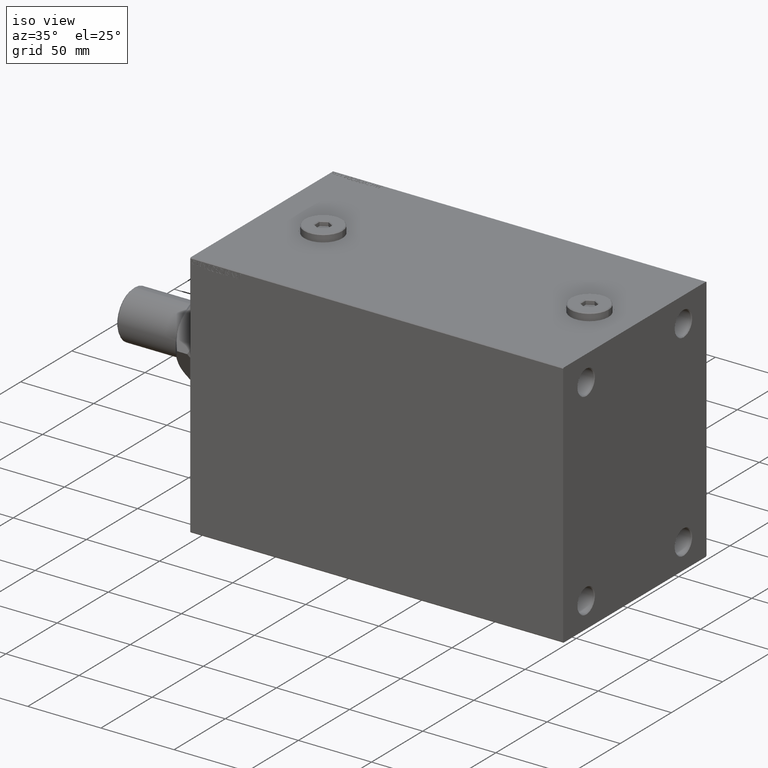
[diagram: clean part render]
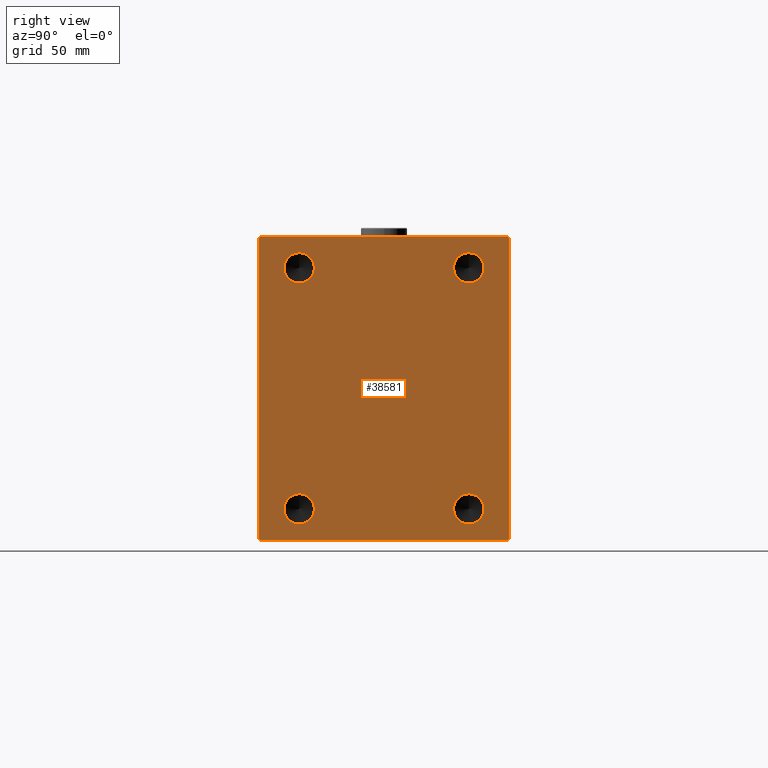
[diagram: tour spotlight — one face highlighted and labeled with its STEP entity id]
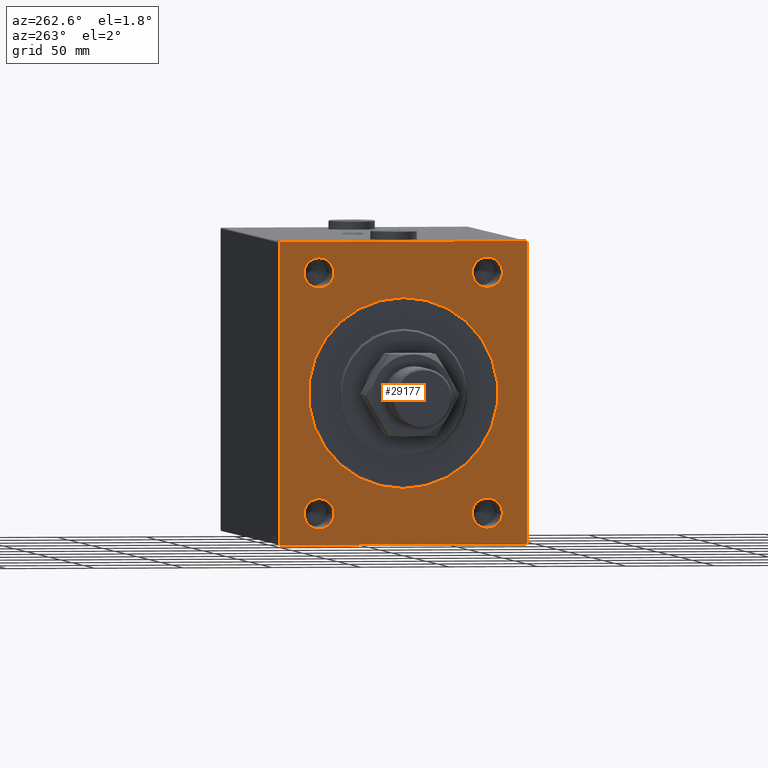
[diagram: tour spotlight — one face highlighted and labeled with its STEP entity id]
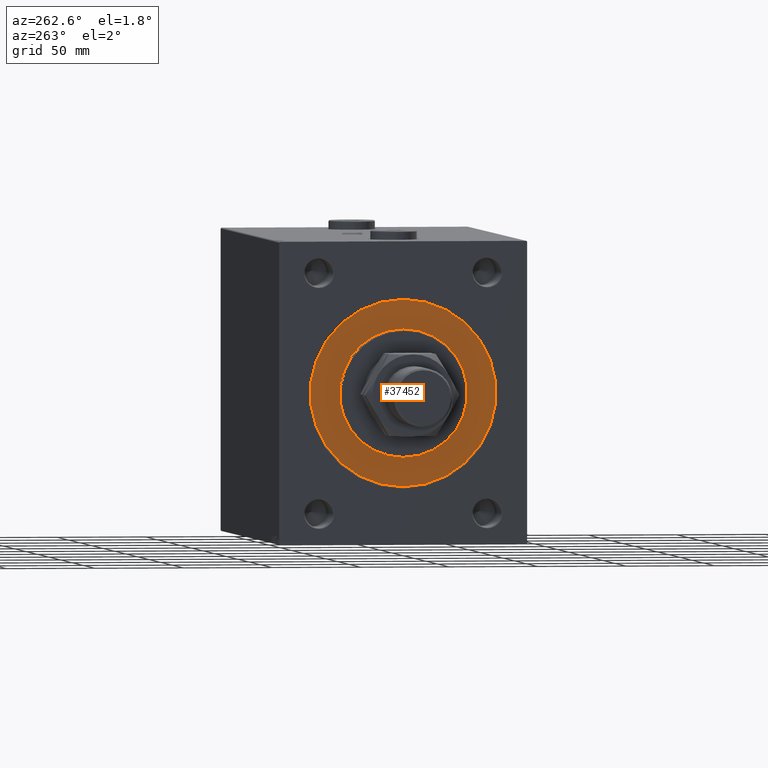
[diagram: tour spotlight — one face highlighted and labeled with its STEP entity id]
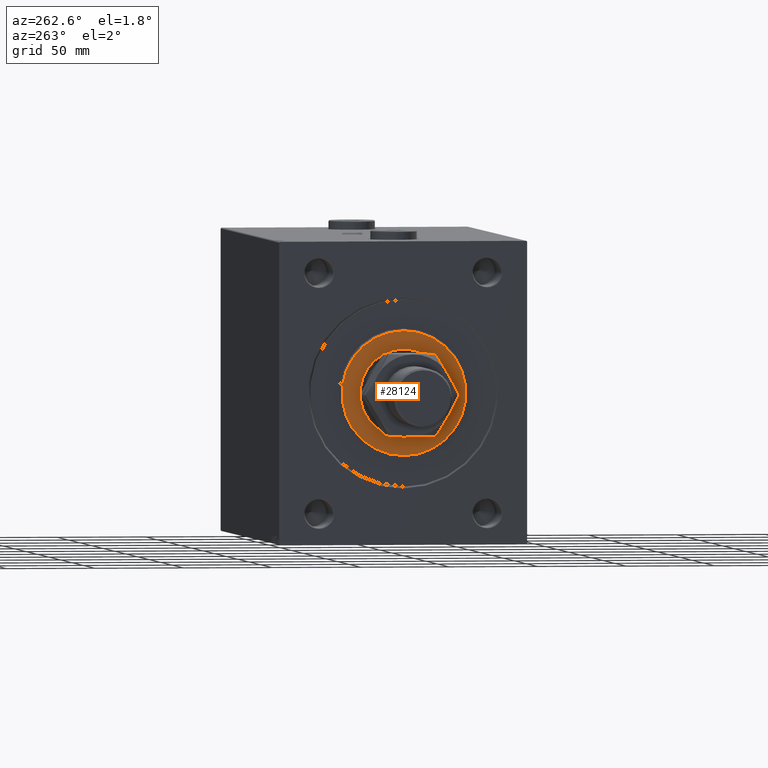
[diagram: tour spotlight — one face highlighted and labeled with its STEP entity id]
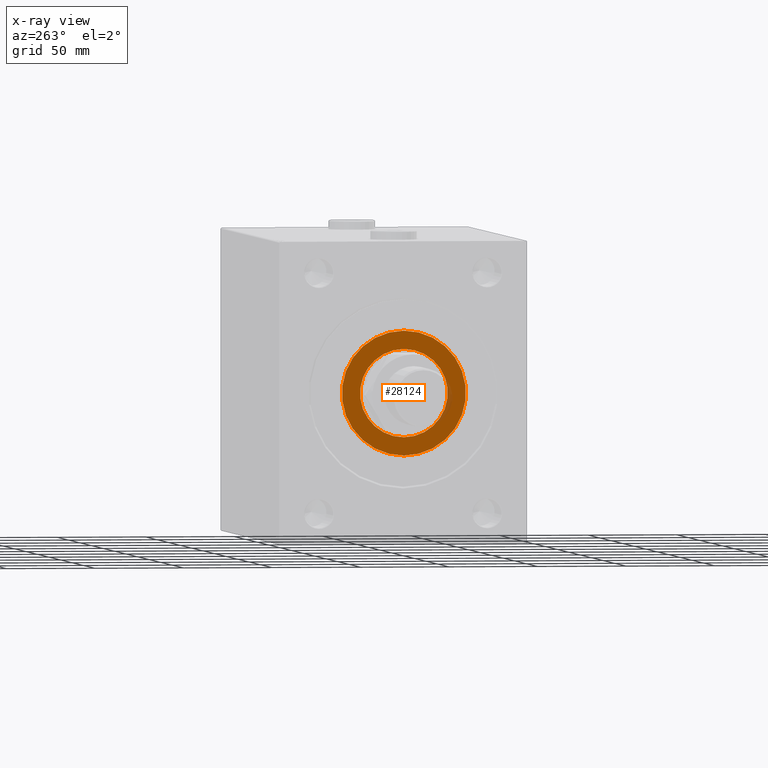
[diagram: x-ray of the same camera — body ghosted, this tour face saturated]
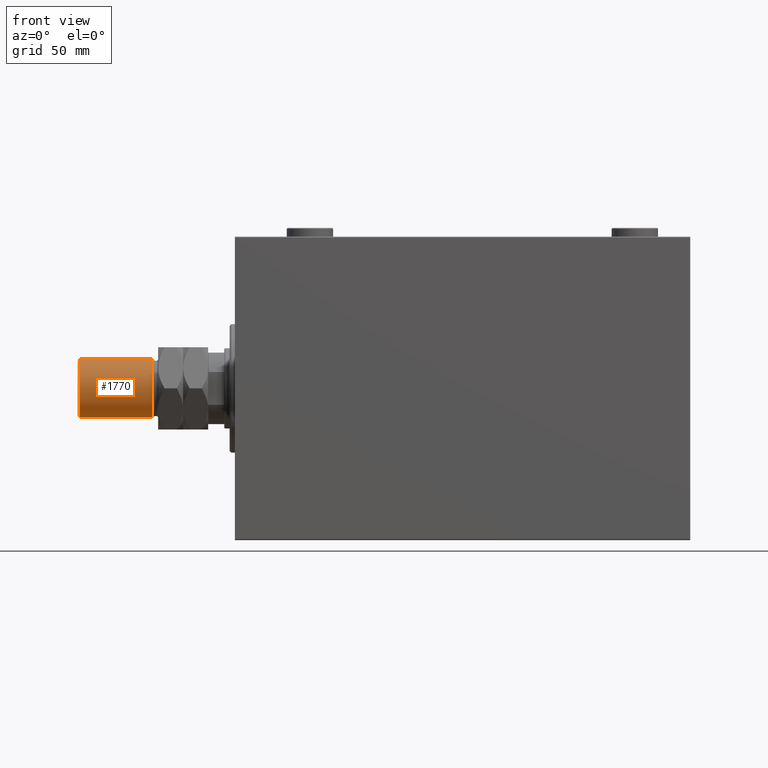
[diagram: tour spotlight — one face highlighted and labeled with its STEP entity id]
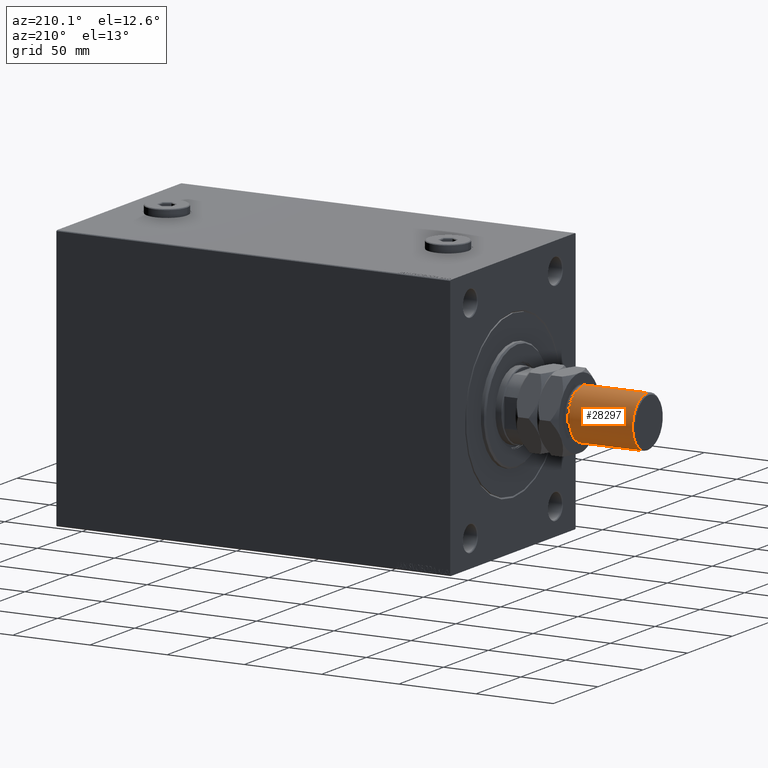
[diagram: tour spotlight — one face highlighted and labeled with its STEP entity id]
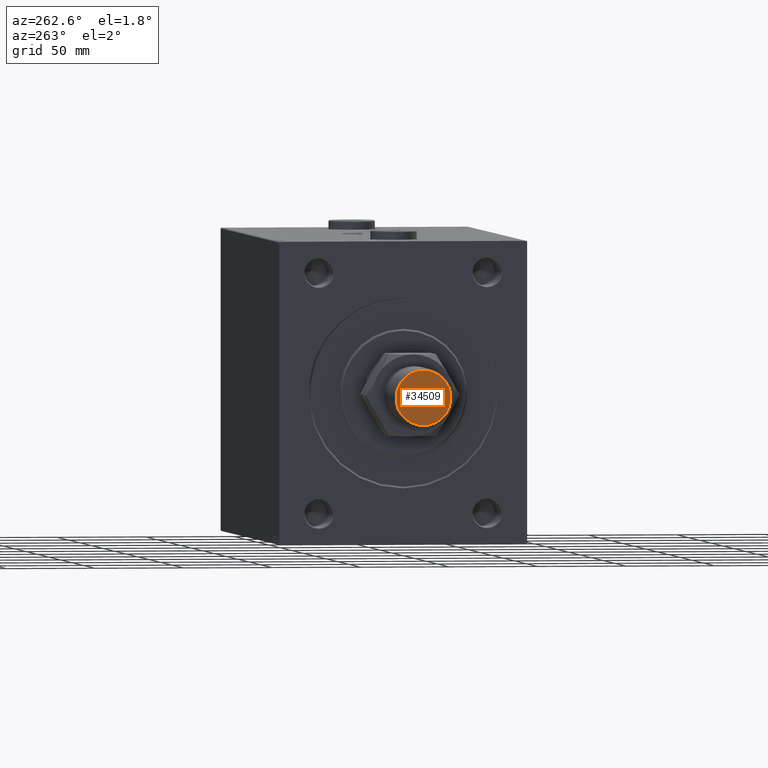
[diagram: tour spotlight — one face highlighted and labeled with its STEP entity id]
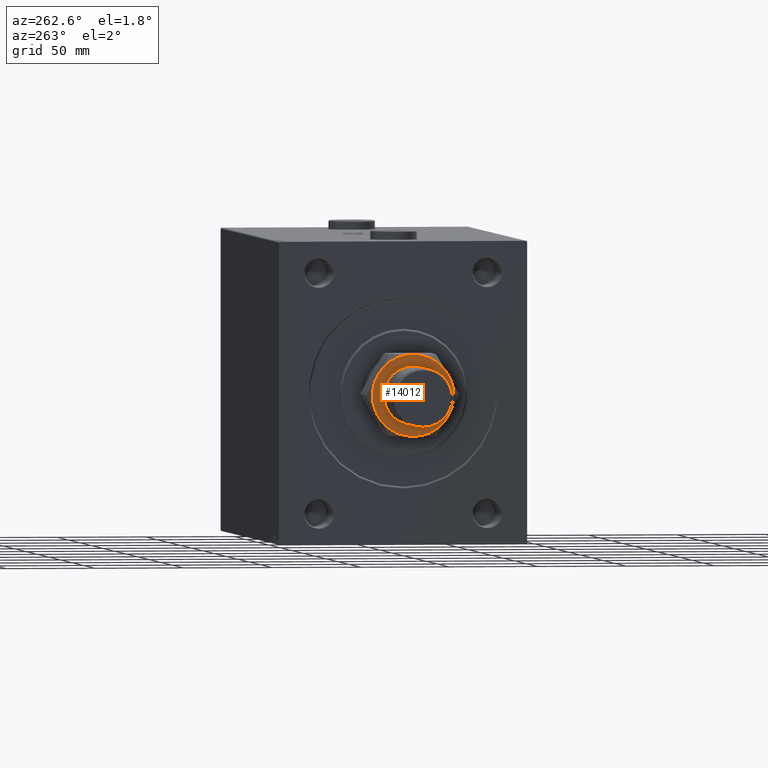
[diagram: tour spotlight — one face highlighted and labeled with its STEP entity id]
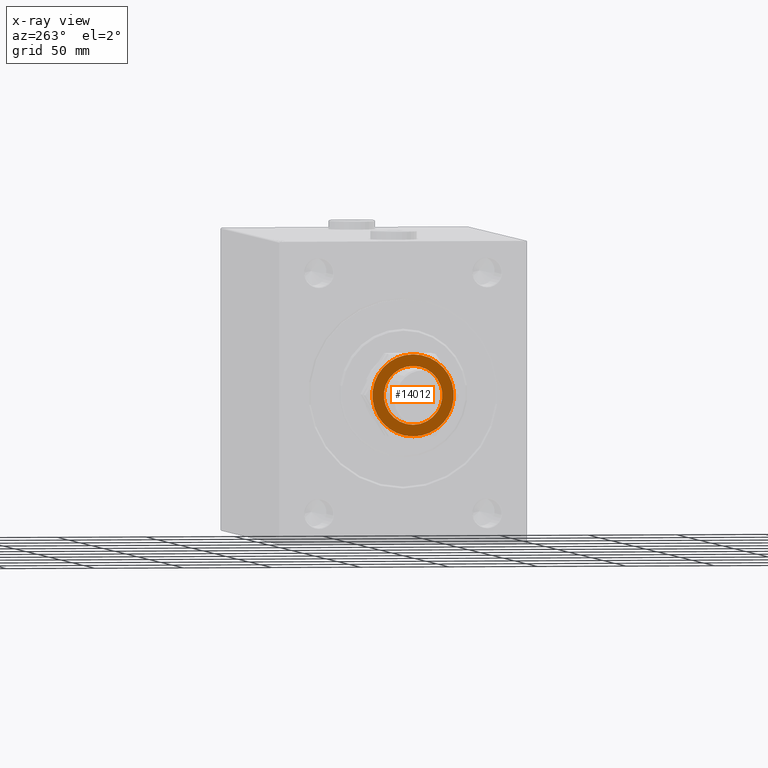
[diagram: x-ray of the same camera — body ghosted, this tour face saturated]
A machine part: a face-by-face anatomy tour. The part has 987 B-rep faces; the first image is the clean iso view, then the 8 largest visible faces are spotlighted one at a time (largest first), each with its STEP entity span.

Face 1 — right view, entity #38581. In plain terms, the highlighted planar face has unit normal (1, 0, 0).
Definition (entity closure, byte-faithful):
#213 = CARTESIAN_POINT ( 'NONE',  ( 255.0000000000000000, -70.00000000000000000, -84.49999999999994316 ) ) ;
#712 = EDGE_CURVE ( 'NONE', #5267, #20842, #40346, .T. ) ;
#1172 = DIRECTION ( 'NONE',  ( -0.000000000000000000, 0.7071067811865376918, 0.7071067811865574537 ) ) ;
#1206 = EDGE_CURVE ( 'NONE', #22684, #13029, #2306, .T. ) ;
#2238 = DIRECTION ( 'NONE',  ( 1.000000000000000000, -0.000000000000000000, -0.000000000000000000 ) ) ;
#2306 = LINE ( 'NONE', #20951, #11168 ) ;
#2494 = FACE_OUTER_BOUND ( 'NONE', #24625, .T. ) ;
#2654 = DIRECTION ( 'NONE',  ( -0.000000000000000000, 0.7071067811865376918, -0.7071067811865573427 ) ) ;
#2894 = VECTOR ( 'NONE', #2654, 1000.000000000000114 ) ;
#3038 = DIRECTION ( 'NONE',  ( 0.000000000000000000, -1.000000000000000000, -1.982541115402065110E-16 ) ) ;
#3117 = ORIENTED_EDGE ( 'NONE', *, *, #38152, .T. ) ;
#3332 = CARTESIAN_POINT ( 'NONE',  ( 255.0000000000000000, 47.50000000000000000, -59.00000000000002132 ) ) ;
#3746 = EDGE_CURVE ( 'NONE', #14069, #35767, #25752, .T. ) ;
#4464 = AXIS2_PLACEMENT_3D ( 'NONE', #20897, #12766, #38642 ) ;
#5052 = LINE ( 'NONE', #23940, #23516 ) ;
#5170 = CARTESIAN_POINT ( 'NONE',  ( 255.0000000000000000, 70.00000000000001421, -85.00000000000000000 ) ) ;
#5256 = DIRECTION ( 'NONE',  ( -0.000000000000000000, -0.7071067811865378028, 0.7071067811865573427 ) ) ;
#5267 = VERTEX_POINT ( 'NONE', #3332 ) ;
#5295 = LINE ( 'NONE', #5758, #2894 ) ;
#5375 = ORIENTED_EDGE ( 'NONE', *, *, #23305, .F. ) ;
#5758 = CARTESIAN_POINT ( 'NONE',  ( 255.0000000000000000, -77.25000000000093792, -77.24999999999880629 ) ) ;
#6071 = FACE_BOUND ( 'NONE', #35978, .T. ) ;
#6182 = VERTEX_POINT ( 'NONE', #213 ) ;
#6550 = EDGE_CURVE ( 'NONE', #13029, #18357, #7800, .T. ) ;
#6729 = ORIENTED_EDGE ( 'NONE', *, *, #3746, .F. ) ;
#6859 = CARTESIAN_POINT ( 'NONE',  ( 255.0000000000000000, -47.50000000000000000, -76.00000000000001421 ) ) ;
#7410 = CARTESIAN_POINT ( 'NONE',  ( 255.0000000000000000, -47.50000000000000000, 67.49999999999998579 ) ) ;
#7477 = CARTESIAN_POINT ( 'NONE',  ( 255.0000000000000000, 47.50000000000000000, 59.00000000000000000 ) ) ;
#7800 = LINE ( 'NONE', #5170, #19716 ) ;
#9171 = FACE_BOUND ( 'NONE', #44283, .T. ) ;
#9780 = ORIENTED_EDGE ( 'NONE', *, *, #712, .F. ) ;
#10277 = DIRECTION ( 'NONE',  ( 0.000000000000000000, 1.000000000000000000, 0.000000000000000000 ) ) ;
#10959 = CIRCLE ( 'NONE', #20123, 8.500000000000007105 ) ;
#11114 = VERTEX_POINT ( 'NONE', #35756 ) ;
#11168 = VECTOR ( 'NONE', #1172, 999.9999999999998863 ) ;
#11295 = EDGE_CURVE ( 'NONE', #23314, #14481, #31373, .T. ) ;
#11334 = DIRECTION ( 'NONE',  ( 1.000000000000000000, -0.000000000000000000, -0.000000000000000000 ) ) ;
#11501 = DIRECTION ( 'NONE',  ( 0.000000000000000000, 0.000000000000000000, -1.000000000000000000 ) ) ;
#11775 = AXIS2_PLACEMENT_3D ( 'NONE', #16261, #23681, #34697 ) ;
#12415 = ORIENTED_EDGE ( 'NONE', *, *, #25292, .F. ) ;
#12766 = DIRECTION ( 'NONE',  ( 1.000000000000000000, 0.000000000000000000, 0.000000000000000000 ) ) ;
#13029 = VERTEX_POINT ( 'NONE', #23231 ) ;
#13832 = CARTESIAN_POINT ( 'NONE',  ( 255.0000000000000000, 47.50000000000000000, 75.99999999999998579 ) ) ;
#14069 = VERTEX_POINT ( 'NONE', #13832 ) ;
#14122 = VERTEX_POINT ( 'NONE', #17418 ) ;
#14481 = VERTEX_POINT ( 'NONE', #19061 ) ;
#15244 = DIRECTION ( 'NONE',  ( 0.000000000000000000, 0.000000000000000000, -1.000000000000000000 ) ) ;
#15383 = CARTESIAN_POINT ( 'NONE',  ( 255.0000000000000000, 69.49999999999997158, 85.00000000000001421 ) ) ;
#15519 = ORIENTED_EDGE ( 'NONE', *, *, #33963, .T. ) ;
#15929 = AXIS2_PLACEMENT_3D ( 'NONE', #43669, #37168, #36227 ) ;
#16261 = CARTESIAN_POINT ( 'NONE',  ( 255.0000000000000000, 47.50000000000000000, -67.50000000000001421 ) ) ;
#16575 = AXIS2_PLACEMENT_3D ( 'NONE', #38864, #2238, #34782 ) ;
#17418 = CARTESIAN_POINT ( 'NONE',  ( 255.0000000000000000, -47.50000000000000000, -59.00000000000002132 ) ) ;
#17617 = ORIENTED_EDGE ( 'NONE', *, *, #34923, .F. ) ;
#18242 = ORIENTED_EDGE ( 'NONE', *, *, #1206, .T. ) ;
#18357 = VERTEX_POINT ( 'NONE', #20985 ) ;
#18403 = CARTESIAN_POINT ( 'NONE',  ( 255.0000000000000000, -77.24999999999803890, 77.25000000000234479 ) ) ;
#18425 = DIRECTION ( 'NONE',  ( 0.000000000000000000, 0.000000000000000000, -1.000000000000000000 ) ) ;
#19061 = CARTESIAN_POINT ( 'NONE',  ( 255.0000000000000000, -47.50000000000000000, 75.99999999999998579 ) ) ;
#19115 = LINE ( 'NONE', #18403, #44239 ) ;
#19716 = VECTOR ( 'NONE', #22410, 1000.000000000000000 ) ;
#20123 = AXIS2_PLACEMENT_3D ( 'NONE', #37762, #29601, #15244 ) ;
#20197 = ORIENTED_EDGE ( 'NONE', *, *, #28494, .T. ) ;
#20251 = VERTEX_POINT ( 'NONE', #29646 ) ;
#20344 = VECTOR ( 'NONE', #5256, 1000.000000000000000 ) ;
#20838 = CARTESIAN_POINT ( 'NONE',  ( 255.0000000000000000, -69.49999999999995737, -85.00000000000000000 ) ) ;
#20842 = VERTEX_POINT ( 'NONE', #27861 ) ;
#20897 = CARTESIAN_POINT ( 'NONE',  ( 255.0000000000000000, 0.000000000000000000, 0.000000000000000000 ) ) ;
#20951 = CARTESIAN_POINT ( 'NONE',  ( 255.0000000000000000, 77.25000000000099476, -77.24999999999884892 ) ) ;
#20985 = CARTESIAN_POINT ( 'NONE',  ( 255.0000000000000000, 70.00000000000000000, 84.49999999999997158 ) ) ;
#21118 = PLANE ( 'NONE',  #4464 ) ;
#21480 = ORIENTED_EDGE ( 'NONE', *, *, #25196, .T. ) ;
#22022 = DIRECTION ( 'NONE',  ( 1.000000000000000000, -0.000000000000000000, -0.000000000000000000 ) ) ;
#22410 = DIRECTION ( 'NONE',  ( 0.000000000000000000, -8.163404592832031500E-17, 1.000000000000000000 ) ) ;
#22684 = VERTEX_POINT ( 'NONE', #42209 ) ;
#22703 = DIRECTION ( 'NONE',  ( 0.000000000000000000, -0.7071067811865672237, -0.7071067811865279218 ) ) ;
#23231 = CARTESIAN_POINT ( 'NONE',  ( 255.0000000000000000, 70.00000000000001421, -84.50000000000002842 ) ) ;
#23305 = EDGE_CURVE ( 'NONE', #14481, #23314, #10959, .T. ) ;
#23314 = VERTEX_POINT ( 'NONE', #30078 ) ;
#23516 = VECTOR ( 'NONE', #24172, 1000.000000000000000 ) ;
#23635 = ORIENTED_EDGE ( 'NONE', *, *, #40066, .F. ) ;
#23681 = DIRECTION ( 'NONE',  ( 1.000000000000000000, -0.000000000000000000, -0.000000000000000000 ) ) ;
#23852 = ORIENTED_EDGE ( 'NONE', *, *, #11295, .F. ) ;
#23940 = CARTESIAN_POINT ( 'NONE',  ( 255.0000000000000000, -70.00000000000000000, 84.99999999999998579 ) ) ;
#24172 = DIRECTION ( 'NONE',  ( 0.000000000000000000, 0.000000000000000000, -1.000000000000000000 ) ) ;
#24246 = FACE_BOUND ( 'NONE', #42732, .T. ) ;
#24487 = FACE_BOUND ( 'NONE', #33017, .T. ) ;
#24625 = EDGE_LOOP ( 'NONE', ( #21480, #3117, #35988, #15519, #25761, #18242, #28247, #20197 ) ) ;
#24879 = CIRCLE ( 'NONE', #40174, 8.500000000000007105 ) ;
#25196 = EDGE_CURVE ( 'NONE', #31950, #11114, #45279, .T. ) ;
#25292 = EDGE_CURVE ( 'NONE', #20842, #5267, #37812, .T. ) ;
#25752 = CIRCLE ( 'NONE', #16575, 8.500000000000007105 ) ;
#25761 = ORIENTED_EDGE ( 'NONE', *, *, #44167, .T. ) ;
#26174 = CARTESIAN_POINT ( 'NONE',  ( 255.0000000000000000, 47.50000000000000000, -67.50000000000001421 ) ) ;
#26784 = AXIS2_PLACEMENT_3D ( 'NONE', #7410, #22022, #18425 ) ;
#27244 = AXIS2_PLACEMENT_3D ( 'NONE', #26174, #11334, #40561 ) ;
#27261 = EDGE_CURVE ( 'NONE', #35767, #14069, #24879, .T. ) ;
#27270 = CARTESIAN_POINT ( 'NONE',  ( 255.0000000000000000, 70.00000000000000000, 85.00000000000001421 ) ) ;
#27861 = CARTESIAN_POINT ( 'NONE',  ( 255.0000000000000000, 47.50000000000000000, -76.00000000000001421 ) ) ;
#28196 = CIRCLE ( 'NONE', #38952, 8.500000000000007105 ) ;
#28247 = ORIENTED_EDGE ( 'NONE', *, *, #6550, .T. ) ;
#28494 = EDGE_CURVE ( 'NONE', #18357, #31950, #45501, .T. ) ;
#28935 = LINE ( 'NONE', #39280, #40584 ) ;
#29601 = DIRECTION ( 'NONE',  ( 1.000000000000000000, -0.000000000000000000, -0.000000000000000000 ) ) ;
#29646 = CARTESIAN_POINT ( 'NONE',  ( 255.0000000000000000, -70.00000000000000000, 84.49999999999998579 ) ) ;
#30078 = CARTESIAN_POINT ( 'NONE',  ( 255.0000000000000000, -47.50000000000000000, 59.00000000000000000 ) ) ;
#30426 = DIRECTION ( 'NONE',  ( 0.000000000000000000, 0.000000000000000000, -1.000000000000000000 ) ) ;
#30852 = CARTESIAN_POINT ( 'NONE',  ( 255.0000000000000000, 77.25000000000096634, 77.24999999999883471 ) ) ;
#31373 = CIRCLE ( 'NONE', #26784, 8.500000000000007105 ) ;
#31950 = VERTEX_POINT ( 'NONE', #15383 ) ;
#33017 = EDGE_LOOP ( 'NONE', ( #5375, #23852 ) ) ;
#33550 = CARTESIAN_POINT ( 'NONE',  ( 255.0000000000000000, 47.50000000000000000, 67.49999999999998579 ) ) ;
#33914 = EDGE_CURVE ( 'NONE', #20251, #6182, #5052, .T. ) ;
#33963 = EDGE_CURVE ( 'NONE', #6182, #39051, #5295, .T. ) ;
#33975 = VECTOR ( 'NONE', #3038, 1000.000000000000000 ) ;
#34697 = DIRECTION ( 'NONE',  ( 0.000000000000000000, 0.000000000000000000, -1.000000000000000000 ) ) ;
#34782 = DIRECTION ( 'NONE',  ( 0.000000000000000000, 0.000000000000000000, -1.000000000000000000 ) ) ;
#34923 = EDGE_CURVE ( 'NONE', #14122, #43200, #45027, .T. ) ;
#35756 = CARTESIAN_POINT ( 'NONE',  ( 255.0000000000000000, -69.49999999999997158, 84.99999999999998579 ) ) ;
#35767 = VERTEX_POINT ( 'NONE', #7477 ) ;
#35978 = EDGE_LOOP ( 'NONE', ( #17617, #23635 ) ) ;
#35988 = ORIENTED_EDGE ( 'NONE', *, *, #33914, .T. ) ;
#36227 = DIRECTION ( 'NONE',  ( 0.000000000000000000, 0.000000000000000000, -1.000000000000000000 ) ) ;
#37168 = DIRECTION ( 'NONE',  ( 1.000000000000000000, -0.000000000000000000, -0.000000000000000000 ) ) ;
#37762 = CARTESIAN_POINT ( 'NONE',  ( 255.0000000000000000, -47.50000000000000000, 67.49999999999998579 ) ) ;
#37802 = DIRECTION ( 'NONE',  ( 1.000000000000000000, -0.000000000000000000, -0.000000000000000000 ) ) ;
#37812 = CIRCLE ( 'NONE', #11775, 8.500000000000007105 ) ;
#38152 = EDGE_CURVE ( 'NONE', #11114, #20251, #19115, .T. ) ;
#38345 = DIRECTION ( 'NONE',  ( 1.000000000000000000, -0.000000000000000000, -0.000000000000000000 ) ) ;
#38381 = ORIENTED_EDGE ( 'NONE', *, *, #27261, .F. ) ;
#38581 = ADVANCED_FACE ( 'NONE', ( #9171, #24487, #6071, #24246, #2494 ), #21118, .T. ) ;
#38642 = DIRECTION ( 'NONE',  ( 0.000000000000000000, 0.000000000000000000, -1.000000000000000000 ) ) ;
#38864 = CARTESIAN_POINT ( 'NONE',  ( 255.0000000000000000, 47.50000000000000000, 67.49999999999998579 ) ) ;
#38952 = AXIS2_PLACEMENT_3D ( 'NONE', #41637, #37802, #11501 ) ;
#39051 = VERTEX_POINT ( 'NONE', #20838 ) ;
#39280 = CARTESIAN_POINT ( 'NONE',  ( 255.0000000000000000, -70.00000000000000000, -85.00000000000000000 ) ) ;
#40066 = EDGE_CURVE ( 'NONE', #43200, #14122, #28196, .T. ) ;
#40174 = AXIS2_PLACEMENT_3D ( 'NONE', #33550, #38345, #30426 ) ;
#40346 = CIRCLE ( 'NONE', #27244, 8.500000000000007105 ) ;
#40561 = DIRECTION ( 'NONE',  ( 0.000000000000000000, 0.000000000000000000, -1.000000000000000000 ) ) ;
#40584 = VECTOR ( 'NONE', #10277, 1000.000000000000000 ) ;
#41637 = CARTESIAN_POINT ( 'NONE',  ( 255.0000000000000000, -47.50000000000000000, -67.50000000000001421 ) ) ;
#42209 = CARTESIAN_POINT ( 'NONE',  ( 255.0000000000000000, 69.50000000000005684, -85.00000000000000000 ) ) ;
#42732 = EDGE_LOOP ( 'NONE', ( #9780, #12415 ) ) ;
#43200 = VERTEX_POINT ( 'NONE', #6859 ) ;
#43669 = CARTESIAN_POINT ( 'NONE',  ( 255.0000000000000000, -47.50000000000000000, -67.50000000000001421 ) ) ;
#44167 = EDGE_CURVE ( 'NONE', #39051, #22684, #28935, .T. ) ;
#44239 = VECTOR ( 'NONE', #22703, 1000.000000000000000 ) ;
#44283 = EDGE_LOOP ( 'NONE', ( #6729, #38381 ) ) ;
#45027 = CIRCLE ( 'NONE', #15929, 8.500000000000007105 ) ;
#45279 = LINE ( 'NONE', #27270, #33975 ) ;
#45501 = LINE ( 'NONE', #30852, #20344 ) ;

Face 2 — auxiliary view, entity #29177. In plain terms, the highlighted planar face has unit normal (1, 0, 0).
Definition (entity closure, byte-faithful):
#201 = DIRECTION ( 'NONE',  ( 1.000000000000000000, 0.000000000000000000, 0.000000000000000000 ) ) ;
#661 = EDGE_CURVE ( 'NONE', #7715, #10481, #22725, .T. ) ;
#767 = FACE_OUTER_BOUND ( 'NONE', #44369, .T. ) ;
#866 = VECTOR ( 'NONE', #16508, 999.9999999999998863 ) ;
#950 = EDGE_LOOP ( 'NONE', ( #36828, #43533 ) ) ;
#1009 = LINE ( 'NONE', #30190, #13444 ) ;
#1247 = CARTESIAN_POINT ( 'NONE',  ( 0.000000000000000000, 69.49999999999997158, 85.00000000000001421 ) ) ;
#1589 = DIRECTION ( 'NONE',  ( -0.000000000000000000, 0.7071067811865378028, -0.7071067811865573427 ) ) ;
#1838 = VERTEX_POINT ( 'NONE', #12082 ) ;
#2026 = EDGE_CURVE ( 'NONE', #1838, #20253, #44148, .T. ) ;
#2905 = CARTESIAN_POINT ( 'NONE',  ( 0.000000000000000000, -47.50000000000000000, -67.50000000000001421 ) ) ;
#3051 = CARTESIAN_POINT ( 'NONE',  ( 0.000000000000000000, -47.50000000000000000, -67.50000000000001421 ) ) ;
#3344 = CARTESIAN_POINT ( 'NONE',  ( 0.000000000000000000, 47.50000000000000000, -67.50000000000001421 ) ) ;
#3530 = EDGE_CURVE ( 'NONE', #23520, #22853, #13541, .T. ) ;
#3948 = VECTOR ( 'NONE', #11029, 1000.000000000000000 ) ;
#4173 = DIRECTION ( 'NONE',  ( 0.000000000000000000, 0.000000000000000000, -1.000000000000000000 ) ) ;
#4364 = DIRECTION ( 'NONE',  ( 0.000000000000000000, 0.000000000000000000, -1.000000000000000000 ) ) ;
#4534 = VERTEX_POINT ( 'NONE', #32985 ) ;
#5485 = CIRCLE ( 'NONE', #8513, 8.500000000000007105 ) ;
#5608 = ORIENTED_EDGE ( 'NONE', *, *, #46424, .T. ) ;
#6509 = VECTOR ( 'NONE', #1589, 1000.000000000000000 ) ;
#6674 = AXIS2_PLACEMENT_3D ( 'NONE', #25854, #40967, #8136 ) ;
#7004 = CARTESIAN_POINT ( 'NONE',  ( 0.000000000000000000, 0.000000000000000000, 0.000000000000000000 ) ) ;
#7143 = CARTESIAN_POINT ( 'NONE',  ( 0.000000000000000000, -47.50000000000000000, -76.00000000000002842 ) ) ;
#7500 = DIRECTION ( 'NONE',  ( 1.000000000000000000, 0.000000000000000000, 0.000000000000000000 ) ) ;
#7715 = VERTEX_POINT ( 'NONE', #32562 ) ;
#7907 = LINE ( 'NONE', #14627, #3948 ) ;
#8136 = DIRECTION ( 'NONE',  ( 0.000000000000000000, 0.000000000000000000, -1.000000000000000000 ) ) ;
#8273 = AXIS2_PLACEMENT_3D ( 'NONE', #41829, #13076, #9003 ) ;
#8513 = AXIS2_PLACEMENT_3D ( 'NONE', #3344, #25101, #25804 ) ;
#8877 = EDGE_CURVE ( 'NONE', #1838, #43908, #19574, .T. ) ;
#9003 = DIRECTION ( 'NONE',  ( 0.000000000000000000, 0.000000000000000000, -1.000000000000000000 ) ) ;
#9344 = LINE ( 'NONE', #23943, #45290 ) ;
#9472 = ORIENTED_EDGE ( 'NONE', *, *, #16445, .T. ) ;
#9688 = ORIENTED_EDGE ( 'NONE', *, *, #26224, .T. ) ;
#9821 = DIRECTION ( 'NONE',  ( 0.000000000000000000, 0.000000000000000000, -1.000000000000000000 ) ) ;
#9974 = VERTEX_POINT ( 'NONE', #26420 ) ;
#10383 = VERTEX_POINT ( 'NONE', #42425 ) ;
#10481 = VERTEX_POINT ( 'NONE', #11232 ) ;
#11029 = DIRECTION ( 'NONE',  ( -0.000000000000000000, 0.7071067811865672237, 0.7071067811865279218 ) ) ;
#11232 = CARTESIAN_POINT ( 'NONE',  ( 0.000000000000000000, -47.50000000000000000, 76.00000000000000000 ) ) ;
#12082 = CARTESIAN_POINT ( 'NONE',  ( 0.000000000000000000, -69.49999999999995737, -85.00000000000000000 ) ) ;
#12416 = ORIENTED_EDGE ( 'NONE', *, *, #17155, .T. ) ;
#12810 = DIRECTION ( 'NONE',  ( 1.000000000000000000, 0.000000000000000000, 0.000000000000000000 ) ) ;
#12906 = VERTEX_POINT ( 'NONE', #44108 ) ;
#13076 = DIRECTION ( 'NONE',  ( 1.000000000000000000, 0.000000000000000000, 0.000000000000000000 ) ) ;
#13444 = VECTOR ( 'NONE', #42426, 1000.000000000000000 ) ;
#13541 = CIRCLE ( 'NONE', #41067, 8.500000000000007105 ) ;
#13743 = CARTESIAN_POINT ( 'NONE',  ( 0.000000000000000000, -47.50000000000000000, -59.00000000000001421 ) ) ;
#13853 = EDGE_CURVE ( 'NONE', #47416, #4534, #29891, .T. ) ;
#13986 = CARTESIAN_POINT ( 'NONE',  ( 0.000000000000000000, -70.00000000000000000, 84.49999999999998579 ) ) ;
#14627 = CARTESIAN_POINT ( 'NONE',  ( 0.000000000000000000, -70.00000000000000000, 84.49999999999998579 ) ) ;
#16059 = AXIS2_PLACEMENT_3D ( 'NONE', #40182, #201, #21973 ) ;
#16244 = VERTEX_POINT ( 'NONE', #7143 ) ;
#16445 = EDGE_CURVE ( 'NONE', #16244, #24828, #28333, .T. ) ;
#16508 = DIRECTION ( 'NONE',  ( 0.000000000000000000, -0.7071067811865376918, -0.7071067811865574537 ) ) ;
#17155 = EDGE_CURVE ( 'NONE', #36052, #43908, #38089, .T. ) ;
#17639 = DIRECTION ( 'NONE',  ( 0.000000000000000000, 0.000000000000000000, -1.000000000000000000 ) ) ;
#17710 = DIRECTION ( 'NONE',  ( 1.000000000000000000, 0.000000000000000000, 0.000000000000000000 ) ) ;
#17782 = EDGE_LOOP ( 'NONE', ( #47033, #45201 ) ) ;
#17872 = DIRECTION ( 'NONE',  ( 1.000000000000000000, 0.000000000000000000, 0.000000000000000000 ) ) ;
#19574 = LINE ( 'NONE', #41855, #28195 ) ;
#19601 = ORIENTED_EDGE ( 'NONE', *, *, #29402, .F. ) ;
#19794 = ORIENTED_EDGE ( 'NONE', *, *, #46171, .T. ) ;
#20068 = EDGE_CURVE ( 'NONE', #36052, #10383, #9344, .T. ) ;
#20253 = VERTEX_POINT ( 'NONE', #29882 ) ;
#20422 = CARTESIAN_POINT ( 'NONE',  ( 0.000000000000000000, -70.00000000000000000, 84.99999999999998579 ) ) ;
#20729 = CARTESIAN_POINT ( 'NONE',  ( 0.000000000000000000, 47.50000000000000000, 76.00000000000000000 ) ) ;
#21773 = VECTOR ( 'NONE', #46788, 1000.000000000000000 ) ;
#21832 = FACE_BOUND ( 'NONE', #26594, .T. ) ;
#21973 = DIRECTION ( 'NONE',  ( 0.000000000000000000, 0.000000000000000000, -1.000000000000000000 ) ) ;
#22181 = AXIS2_PLACEMENT_3D ( 'NONE', #24292, #12810, #28126 ) ;
#22310 = DIRECTION ( 'NONE',  ( 1.000000000000000000, 0.000000000000000000, 0.000000000000000000 ) ) ;
#22725 = CIRCLE ( 'NONE', #36518, 8.500000000000007105 ) ;
#22853 = VERTEX_POINT ( 'NONE', #44811 ) ;
#23025 = AXIS2_PLACEMENT_3D ( 'NONE', #47183, #17710, #9821 ) ;
#23059 = DIRECTION ( 'NONE',  ( 1.000000000000000000, 0.000000000000000000, 0.000000000000000000 ) ) ;
#23520 = VERTEX_POINT ( 'NONE', #20729 ) ;
#23555 = AXIS2_PLACEMENT_3D ( 'NONE', #2905, #28504, #42430 ) ;
#23943 = CARTESIAN_POINT ( 'NONE',  ( 0.000000000000000000, 70.00000000000001421, -85.00000000000000000 ) ) ;
#24122 = CARTESIAN_POINT ( 'NONE',  ( 0.000000000000000000, 6.551860375438343048E-15, -53.50000000000002842 ) ) ;
#24292 = CARTESIAN_POINT ( 'NONE',  ( 0.000000000000000000, 47.50000000000000000, 67.49999999999998579 ) ) ;
#24828 = VERTEX_POINT ( 'NONE', #13743 ) ;
#25101 = DIRECTION ( 'NONE',  ( 1.000000000000000000, 0.000000000000000000, 0.000000000000000000 ) ) ;
#25512 = ORIENTED_EDGE ( 'NONE', *, *, #661, .T. ) ;
#25804 = DIRECTION ( 'NONE',  ( 0.000000000000000000, 0.000000000000000000, -1.000000000000000000 ) ) ;
#25854 = CARTESIAN_POINT ( 'NONE',  ( 0.000000000000000000, 0.000000000000000000, 0.000000000000000000 ) ) ;
#26224 = EDGE_CURVE ( 'NONE', #41141, #10383, #45188, .T. ) ;
#26420 = CARTESIAN_POINT ( 'NONE',  ( 0.000000000000000000, 0.000000000000000000, 53.50000000000002842 ) ) ;
#26593 = EDGE_CURVE ( 'NONE', #36386, #20253, #32137, .T. ) ;
#26594 = EDGE_LOOP ( 'NONE', ( #43554, #25512 ) ) ;
#26780 = ORIENTED_EDGE ( 'NONE', *, *, #2026, .T. ) ;
#26954 = CARTESIAN_POINT ( 'NONE',  ( 0.000000000000000000, 69.49999999999997158, 85.00000000000001421 ) ) ;
#26962 = ORIENTED_EDGE ( 'NONE', *, *, #20068, .F. ) ;
#27384 = CIRCLE ( 'NONE', #8273, 8.500000000000007105 ) ;
#28126 = DIRECTION ( 'NONE',  ( 0.000000000000000000, 0.000000000000000000, -1.000000000000000000 ) ) ;
#28195 = VECTOR ( 'NONE', #38264, 1000.000000000000000 ) ;
#28333 = CIRCLE ( 'NONE', #46730, 8.500000000000007105 ) ;
#28504 = DIRECTION ( 'NONE',  ( 1.000000000000000000, 0.000000000000000000, 0.000000000000000000 ) ) ;
#28866 = ORIENTED_EDGE ( 'NONE', *, *, #26593, .F. ) ;
#29076 = ORIENTED_EDGE ( 'NONE', *, *, #8877, .F. ) ;
#29177 = ADVANCED_FACE ( 'NONE', ( #36220, #36930, #21832, #29719, #44131, #767 ), #32610, .F. ) ;
#29269 = DIRECTION ( 'NONE',  ( -0.000000000000000000, -0.7071067811865376918, 0.7071067811865573427 ) ) ;
#29291 = CARTESIAN_POINT ( 'NONE',  ( 0.000000000000000000, 47.50000000000000000, 67.49999999999998579 ) ) ;
#29402 = EDGE_CURVE ( 'NONE', #41141, #12906, #1009, .T. ) ;
#29719 = FACE_BOUND ( 'NONE', #950, .T. ) ;
#29882 = CARTESIAN_POINT ( 'NONE',  ( 0.000000000000000000, -70.00000000000000000, -84.49999999999994316 ) ) ;
#29891 = CIRCLE ( 'NONE', #23025, 8.500000000000007105 ) ;
#29998 = CARTESIAN_POINT ( 'NONE',  ( 0.000000000000000000, -47.50000000000000000, 67.49999999999998579 ) ) ;
#30190 = CARTESIAN_POINT ( 'NONE',  ( 0.000000000000000000, 70.00000000000000000, 85.00000000000001421 ) ) ;
#30304 = VECTOR ( 'NONE', #29269, 1000.000000000000114 ) ;
#31110 = CARTESIAN_POINT ( 'NONE',  ( 0.000000000000000000, 70.00000000000001421, -84.50000000000002842 ) ) ;
#32137 = LINE ( 'NONE', #20422, #21773 ) ;
#32562 = CARTESIAN_POINT ( 'NONE',  ( 0.000000000000000000, -47.50000000000000000, 58.99999999999998579 ) ) ;
#32610 = PLANE ( 'NONE',  #47138 ) ;
#32625 = CARTESIAN_POINT ( 'NONE',  ( 0.000000000000000000, -69.49999999999995737, -85.00000000000000000 ) ) ;
#32928 = EDGE_CURVE ( 'NONE', #9974, #38260, #46502, .T. ) ;
#32985 = CARTESIAN_POINT ( 'NONE',  ( 0.000000000000000000, 47.50000000000000000, -76.00000000000002842 ) ) ;
#34454 = EDGE_CURVE ( 'NONE', #10481, #7715, #27384, .T. ) ;
#35218 = EDGE_CURVE ( 'NONE', #24828, #16244, #44242, .T. ) ;
#35349 = EDGE_LOOP ( 'NONE', ( #39354, #9472 ) ) ;
#36052 = VERTEX_POINT ( 'NONE', #44573 ) ;
#36220 = FACE_BOUND ( 'NONE', #17782, .T. ) ;
#36386 = VERTEX_POINT ( 'NONE', #13986 ) ;
#36518 = AXIS2_PLACEMENT_3D ( 'NONE', #29998, #23059, #4173 ) ;
#36729 = DIRECTION ( 'NONE',  ( 0.000000000000000000, 0.000000000000000000, -1.000000000000000000 ) ) ;
#36828 = ORIENTED_EDGE ( 'NONE', *, *, #3530, .T. ) ;
#36906 = CARTESIAN_POINT ( 'NONE',  ( 0.000000000000000000, 69.50000000000005684, -85.00000000000000000 ) ) ;
#36930 = FACE_BOUND ( 'NONE', #35349, .T. ) ;
#37327 = CARTESIAN_POINT ( 'NONE',  ( 0.000000000000000000, 47.50000000000000000, -59.00000000000001421 ) ) ;
#38089 = LINE ( 'NONE', #31110, #866 ) ;
#38260 = VERTEX_POINT ( 'NONE', #24122 ) ;
#38264 = DIRECTION ( 'NONE',  ( 0.000000000000000000, 1.000000000000000000, 0.000000000000000000 ) ) ;
#38571 = DIRECTION ( 'NONE',  ( 0.000000000000000000, -8.163404592832031500E-17, 1.000000000000000000 ) ) ;
#39354 = ORIENTED_EDGE ( 'NONE', *, *, #35218, .T. ) ;
#40182 = CARTESIAN_POINT ( 'NONE',  ( 0.000000000000000000, 0.000000000000000000, 0.000000000000000000 ) ) ;
#40967 = DIRECTION ( 'NONE',  ( 1.000000000000000000, 0.000000000000000000, 0.000000000000000000 ) ) ;
#41067 = AXIS2_PLACEMENT_3D ( 'NONE', #29291, #7500, #36729 ) ;
#41141 = VERTEX_POINT ( 'NONE', #1247 ) ;
#41829 = CARTESIAN_POINT ( 'NONE',  ( 0.000000000000000000, -47.50000000000000000, 67.49999999999998579 ) ) ;
#41855 = CARTESIAN_POINT ( 'NONE',  ( 0.000000000000000000, -70.00000000000000000, -85.00000000000000000 ) ) ;
#42425 = CARTESIAN_POINT ( 'NONE',  ( 0.000000000000000000, 70.00000000000000000, 84.49999999999997158 ) ) ;
#42426 = DIRECTION ( 'NONE',  ( 0.000000000000000000, -1.000000000000000000, -1.982541115402065110E-16 ) ) ;
#42430 = DIRECTION ( 'NONE',  ( 0.000000000000000000, 0.000000000000000000, -1.000000000000000000 ) ) ;
#42572 = EDGE_CURVE ( 'NONE', #38260, #9974, #42852, .T. ) ;
#42852 = CIRCLE ( 'NONE', #16059, 53.50000000000002842 ) ;
#43350 = EDGE_CURVE ( 'NONE', #22853, #23520, #44361, .T. ) ;
#43533 = ORIENTED_EDGE ( 'NONE', *, *, #43350, .T. ) ;
#43554 = ORIENTED_EDGE ( 'NONE', *, *, #34454, .T. ) ;
#43908 = VERTEX_POINT ( 'NONE', #36906 ) ;
#44108 = CARTESIAN_POINT ( 'NONE',  ( 0.000000000000000000, -69.49999999999997158, 84.99999999999998579 ) ) ;
#44131 = FACE_BOUND ( 'NONE', #44774, .T. ) ;
#44148 = LINE ( 'NONE', #32625, #30304 ) ;
#44242 = CIRCLE ( 'NONE', #23555, 8.500000000000007105 ) ;
#44361 = CIRCLE ( 'NONE', #22181, 8.500000000000007105 ) ;
#44369 = EDGE_LOOP ( 'NONE', ( #28866, #19794, #19601, #9688, #26962, #12416, #29076, #26780 ) ) ;
#44452 = ORIENTED_EDGE ( 'NONE', *, *, #13853, .T. ) ;
#44573 = CARTESIAN_POINT ( 'NONE',  ( 0.000000000000000000, 70.00000000000001421, -84.50000000000002842 ) ) ;
#44774 = EDGE_LOOP ( 'NONE', ( #44452, #5608 ) ) ;
#44811 = CARTESIAN_POINT ( 'NONE',  ( 0.000000000000000000, 47.50000000000000000, 58.99999999999998579 ) ) ;
#45188 = LINE ( 'NONE', #26954, #6509 ) ;
#45201 = ORIENTED_EDGE ( 'NONE', *, *, #42572, .T. ) ;
#45290 = VECTOR ( 'NONE', #38571, 1000.000000000000000 ) ;
#46171 = EDGE_CURVE ( 'NONE', #36386, #12906, #7907, .T. ) ;
#46424 = EDGE_CURVE ( 'NONE', #4534, #47416, #5485, .T. ) ;
#46502 = CIRCLE ( 'NONE', #6674, 53.50000000000002842 ) ;
#46730 = AXIS2_PLACEMENT_3D ( 'NONE', #3051, #17872, #17639 ) ;
#46788 = DIRECTION ( 'NONE',  ( 0.000000000000000000, 0.000000000000000000, -1.000000000000000000 ) ) ;
#47033 = ORIENTED_EDGE ( 'NONE', *, *, #32928, .T. ) ;
#47138 = AXIS2_PLACEMENT_3D ( 'NONE', #7004, #22310, #4364 ) ;
#47183 = CARTESIAN_POINT ( 'NONE',  ( 0.000000000000000000, 47.50000000000000000, -67.50000000000001421 ) ) ;
#47416 = VERTEX_POINT ( 'NONE', #37327 ) ;

Face 3 — auxiliary view, entity #37452. In plain terms, the highlighted planar face has unit normal (1, -0, -0).
Definition (entity closure, byte-faithful):
#327 = CARTESIAN_POINT ( 'NONE',  ( 0.000000000000000000, 4.408728476930470856E-15, -36.00000000000000000 ) ) ;
#589 = DIRECTION ( 'NONE',  ( 0.000000000000000000, 0.000000000000000000, -1.000000000000000000 ) ) ;
#3670 = CARTESIAN_POINT ( 'NONE',  ( 0.000000000000000000, 0.000000000000000000, 0.000000000000000000 ) ) ;
#5313 = CIRCLE ( 'NONE', #40476, 36.00000000000000000 ) ;
#6162 = ORIENTED_EDGE ( 'NONE', *, *, #9968, .F. ) ;
#6838 = AXIS2_PLACEMENT_3D ( 'NONE', #45146, #41054, #589 ) ;
#7349 = EDGE_CURVE ( 'NONE', #30546, #30112, #40413, .T. ) ;
#9544 = VERTEX_POINT ( 'NONE', #20408 ) ;
#9766 = DIRECTION ( 'NONE',  ( 0.000000000000000000, 0.000000000000000000, 1.000000000000000000 ) ) ;
#9968 = EDGE_CURVE ( 'NONE', #9544, #18778, #21359, .T. ) ;
#10845 = CARTESIAN_POINT ( 'NONE',  ( 0.000000000000000000, 0.000000000000000000, 0.000000000000000000 ) ) ;
#13055 = DIRECTION ( 'NONE',  ( 0.000000000000000000, 0.000000000000000000, 1.000000000000000000 ) ) ;
#13619 = CARTESIAN_POINT ( 'NONE',  ( 0.000000000000000000, 6.429395695523603167E-15, 52.49999999999999289 ) ) ;
#13838 = DIRECTION ( 'NONE',  ( -1.000000000000000000, 0.000000000000000000, 0.000000000000000000 ) ) ;
#15188 = EDGE_LOOP ( 'NONE', ( #6162, #33342 ) ) ;
#16847 = ORIENTED_EDGE ( 'NONE', *, *, #27628, .F. ) ;
#18778 = VERTEX_POINT ( 'NONE', #327 ) ;
#19714 = ORIENTED_EDGE ( 'NONE', *, *, #7349, .F. ) ;
#19759 = AXIS2_PLACEMENT_3D ( 'NONE', #10845, #39836, #21616 ) ;
#20408 = CARTESIAN_POINT ( 'NONE',  ( 0.000000000000000000, 0.000000000000000000, 36.00000000000000000 ) ) ;
#21171 = PLANE ( 'NONE',  #30375 ) ;
#21359 = CIRCLE ( 'NONE', #6838, 36.00000000000000000 ) ;
#21616 = DIRECTION ( 'NONE',  ( 0.000000000000000000, 0.000000000000000000, 1.000000000000000000 ) ) ;
#22788 = DIRECTION ( 'NONE',  ( 1.000000000000000000, -0.000000000000000000, 0.000000000000000000 ) ) ;
#23350 = AXIS2_PLACEMENT_3D ( 'NONE', #46204, #13838, #9766 ) ;
#27419 = DIRECTION ( 'NONE',  ( -1.000000000000000000, 0.000000000000000000, 0.000000000000000000 ) ) ;
#27628 = EDGE_CURVE ( 'NONE', #30112, #30546, #41723, .T. ) ;
#30112 = VERTEX_POINT ( 'NONE', #47330 ) ;
#30375 = AXIS2_PLACEMENT_3D ( 'NONE', #46141, #27419, #13055 ) ;
#30546 = VERTEX_POINT ( 'NONE', #13619 ) ;
#31244 = FACE_BOUND ( 'NONE', #15188, .T. ) ;
#31490 = FACE_OUTER_BOUND ( 'NONE', #33145, .T. ) ;
#33145 = EDGE_LOOP ( 'NONE', ( #16847, #19714 ) ) ;
#33342 = ORIENTED_EDGE ( 'NONE', *, *, #41978, .F. ) ;
#37452 = ADVANCED_FACE ( 'NONE', ( #31244, #31490 ), #21171, .F. ) ;
#39836 = DIRECTION ( 'NONE',  ( -1.000000000000000000, 0.000000000000000000, 0.000000000000000000 ) ) ;
#40413 = CIRCLE ( 'NONE', #19759, 52.49999999999999289 ) ;
#40476 = AXIS2_PLACEMENT_3D ( 'NONE', #3670, #22788, #43911 ) ;
#41054 = DIRECTION ( 'NONE',  ( 1.000000000000000000, -0.000000000000000000, 0.000000000000000000 ) ) ;
#41723 = CIRCLE ( 'NONE', #23350, 52.49999999999999289 ) ;
#41978 = EDGE_CURVE ( 'NONE', #18778, #9544, #5313, .T. ) ;
#43911 = DIRECTION ( 'NONE',  ( 0.000000000000000000, 0.000000000000000000, -1.000000000000000000 ) ) ;
#45146 = CARTESIAN_POINT ( 'NONE',  ( 0.000000000000000000, 0.000000000000000000, 0.000000000000000000 ) ) ;
#46141 = CARTESIAN_POINT ( 'NONE',  ( 0.000000000000000000, 0.000000000000000000, 0.000000000000000000 ) ) ;
#46204 = CARTESIAN_POINT ( 'NONE',  ( 0.000000000000000000, 0.000000000000000000, 0.000000000000000000 ) ) ;
#47330 = CARTESIAN_POINT ( 'NONE',  ( 0.000000000000000000, 0.000000000000000000, -52.49999999999999289 ) ) ;

Face 4 — auxiliary view, entity #28124. An x-ray twin of the same camera follows (body ghosted, this face saturated) — the face is partly hidden behind the body. In plain terms, the highlighted planar face has unit normal (-1, 0, 0).
Definition (entity closure, byte-faithful):
#60 = ORIENTED_EDGE ( 'NONE', *, *, #33756, .T. ) ;
#583 = VERTEX_POINT ( 'NONE', #7742 ) ;
#5069 = DIRECTION ( 'NONE',  ( 1.000000000000000000, -0.000000000000000000, 0.000000000000000000 ) ) ;
#6517 = DIRECTION ( 'NONE',  ( 0.000000000000000000, 0.000000000000000000, -1.000000000000000000 ) ) ;
#6979 = CARTESIAN_POINT ( 'NONE',  ( 3.000000000000000000, 0.000000000000000000, 0.000000000000000000 ) ) ;
#7742 = CARTESIAN_POINT ( 'NONE',  ( 3.000000000000000000, 4.347496136973104859E-15, -35.00000000000002842 ) ) ;
#8788 = DIRECTION ( 'NONE',  ( 1.000000000000000000, -0.000000000000000000, 0.000000000000000000 ) ) ;
#9590 = VERTEX_POINT ( 'NONE', #28530 ) ;
#9729 = DIRECTION ( 'NONE',  ( 0.000000000000000000, 0.000000000000000000, -1.000000000000000000 ) ) ;
#10025 = CARTESIAN_POINT ( 'NONE',  ( 3.000000000000000000, 0.000000000000000000, 0.000000000000000000 ) ) ;
#10430 = DIRECTION ( 'NONE',  ( 1.000000000000000000, 0.000000000000000000, 0.000000000000000000 ) ) ;
#11902 = EDGE_CURVE ( 'NONE', #9590, #24491, #22956, .T. ) ;
#12561 = ORIENTED_EDGE ( 'NONE', *, *, #11902, .F. ) ;
#12954 = FACE_OUTER_BOUND ( 'NONE', #13830, .T. ) ;
#13830 = EDGE_LOOP ( 'NONE', ( #29602, #60 ) ) ;
#17409 = AXIS2_PLACEMENT_3D ( 'NONE', #6979, #33070, #6517 ) ;
#17679 = DIRECTION ( 'NONE',  ( 0.000000000000000000, 0.000000000000000000, -1.000000000000000000 ) ) ;
#19295 = ORIENTED_EDGE ( 'NONE', *, *, #42423, .F. ) ;
#19306 = VERTEX_POINT ( 'NONE', #37082 ) ;
#20135 = FACE_BOUND ( 'NONE', #22435, .T. ) ;
#20975 = CARTESIAN_POINT ( 'NONE',  ( 3.000000000000000000, 0.000000000000000000, 0.000000000000000000 ) ) ;
#22435 = EDGE_LOOP ( 'NONE', ( #12561, #19295 ) ) ;
#22956 = CIRCLE ( 'NONE', #33670, 24.75000000000000355 ) ;
#24491 = VERTEX_POINT ( 'NONE', #25494 ) ;
#25494 = CARTESIAN_POINT ( 'NONE',  ( 3.000000000000000000, 3.031000827889699650E-15, 24.75000000000000355 ) ) ;
#27185 = AXIS2_PLACEMENT_3D ( 'NONE', #41945, #5069, #37872 ) ;
#27219 = CARTESIAN_POINT ( 'NONE',  ( 3.000000000000000000, 0.000000000000000000, 0.000000000000000000 ) ) ;
#28124 = ADVANCED_FACE ( 'NONE', ( #12954, #20135 ), #41473, .T. ) ;
#28530 = CARTESIAN_POINT ( 'NONE',  ( 3.000000000000000000, 0.000000000000000000, -24.75000000000000355 ) ) ;
#28809 = AXIS2_PLACEMENT_3D ( 'NONE', #27219, #8788, #40897 ) ;
#29602 = ORIENTED_EDGE ( 'NONE', *, *, #30822, .T. ) ;
#30822 = EDGE_CURVE ( 'NONE', #19306, #583, #37240, .T. ) ;
#31966 = CIRCLE ( 'NONE', #17409, 35.00000000000002842 ) ;
#33070 = DIRECTION ( 'NONE',  ( 1.000000000000000000, -0.000000000000000000, 0.000000000000000000 ) ) ;
#33670 = AXIS2_PLACEMENT_3D ( 'NONE', #20975, #10430, #9729 ) ;
#33756 = EDGE_CURVE ( 'NONE', #583, #19306, #31966, .T. ) ;
#35924 = CIRCLE ( 'NONE', #37474, 24.75000000000000355 ) ;
#37082 = CARTESIAN_POINT ( 'NONE',  ( 3.000000000000000000, 0.000000000000000000, 35.00000000000002842 ) ) ;
#37240 = CIRCLE ( 'NONE', #28809, 35.00000000000002842 ) ;
#37474 = AXIS2_PLACEMENT_3D ( 'NONE', #10025, #42141, #17679 ) ;
#37872 = DIRECTION ( 'NONE',  ( 0.000000000000000000, 0.000000000000000000, -1.000000000000000000 ) ) ;
#40897 = DIRECTION ( 'NONE',  ( 0.000000000000000000, 0.000000000000000000, -1.000000000000000000 ) ) ;
#41473 = PLANE ( 'NONE',  #27185 ) ;
#41945 = CARTESIAN_POINT ( 'NONE',  ( 3.000000000000000000, 0.000000000000000000, 0.000000000000000000 ) ) ;
#42141 = DIRECTION ( 'NONE',  ( 1.000000000000000000, 0.000000000000000000, 0.000000000000000000 ) ) ;
#42423 = EDGE_CURVE ( 'NONE', #24491, #9590, #35924, .T. ) ;

Face 5 — front view, entity #1770. In plain terms, the highlighted cylindrical surface (edge-blend (fillet) strip) has radius 16.5 mm, axis along (1, -0, -0).
Definition (entity closure, byte-faithful):
#140 = DIRECTION ( 'NONE',  ( -1.000000000000000000, 0.000000000000000000, 0.000000000000000000 ) ) ;
#1770 = ADVANCED_FACE ( 'NONE', ( #22390 ), #25965, .T. ) ;
#2035 = EDGE_CURVE ( 'NONE', #25732, #20069, #11074, .T. ) ;
#2506 = DIRECTION ( 'NONE',  ( -0.000000000000000000, -0.000000000000000000, -1.000000000000000000 ) ) ;
#3736 = DIRECTION ( 'NONE',  ( -0.000000000000000000, -0.000000000000000000, -1.000000000000000000 ) ) ;
#5547 = VECTOR ( 'NONE', #2506, 1000.000000000000000 ) ;
#7950 = ORIENTED_EDGE ( 'NONE', *, *, #36389, .T. ) ;
#10297 = EDGE_LOOP ( 'NONE', ( #16361, #26758, #34804, #7950 ) ) ;
#11074 = LINE ( 'NONE', #36945, #22654 ) ;
#14846 = AXIS2_PLACEMENT_3D ( 'NONE', #29095, #36768, #22153 ) ;
#16361 = ORIENTED_EDGE ( 'NONE', *, *, #2035, .F. ) ;
#17884 = VERTEX_POINT ( 'NONE', #41992 ) ;
#20069 = VERTEX_POINT ( 'NONE', #31117 ) ;
#20772 = EDGE_CURVE ( 'NONE', #21896, #17884, #27149, .T. ) ;
#21896 = VERTEX_POINT ( 'NONE', #23975 ) ;
#22153 = DIRECTION ( 'NONE',  ( 1.000000000000000000, 0.000000000000000000, 0.000000000000000000 ) ) ;
#22390 = FACE_OUTER_BOUND ( 'NONE', #10297, .T. ) ;
#22654 = VECTOR ( 'NONE', #37418, 1000.000000000000000 ) ;
#23975 = CARTESIAN_POINT ( 'NONE',  ( -16.50000000000000000, 0.000000000000000000, 72.00000000000000000 ) ) ;
#25297 = EDGE_CURVE ( 'NONE', #25732, #21896, #46990, .T. ) ;
#25499 = CARTESIAN_POINT ( 'NONE',  ( 0.000000000000000000, 0.000000000000000000, 73.00000000000000000 ) ) ;
#25732 = VERTEX_POINT ( 'NONE', #40780 ) ;
#25965 = CYLINDRICAL_SURFACE ( 'NONE', #41819, 16.50000000000000000 ) ;
#26544 = CIRCLE ( 'NONE', #32673, 16.50000000000000000 ) ;
#26758 = ORIENTED_EDGE ( 'NONE', *, *, #25297, .T. ) ;
#27149 = LINE ( 'NONE', #27621, #5547 ) ;
#27621 = CARTESIAN_POINT ( 'NONE',  ( -16.50000000000000000, 0.000000000000000000, 73.00000000000000000 ) ) ;
#29095 = CARTESIAN_POINT ( 'NONE',  ( 0.000000000000000000, 0.000000000000000000, 72.00000000000000000 ) ) ;
#31117 = CARTESIAN_POINT ( 'NONE',  ( 16.50000000000000000, 2.020667218593133100E-15, 30.99999999999998579 ) ) ;
#32673 = AXIS2_PLACEMENT_3D ( 'NONE', #36009, #45697, #36247 ) ;
#34804 = ORIENTED_EDGE ( 'NONE', *, *, #20772, .T. ) ;
#36009 = CARTESIAN_POINT ( 'NONE',  ( 0.000000000000000000, 0.000000000000000000, 30.99999999999998579 ) ) ;
#36247 = DIRECTION ( 'NONE',  ( 1.000000000000000000, 0.000000000000000000, 0.000000000000000000 ) ) ;
#36389 = EDGE_CURVE ( 'NONE', #17884, #20069, #26544, .T. ) ;
#36768 = DIRECTION ( 'NONE',  ( 0.000000000000000000, 0.000000000000000000, -1.000000000000000000 ) ) ;
#36945 = CARTESIAN_POINT ( 'NONE',  ( 16.50000000000000000, 2.020667218593133100E-15, 73.00000000000000000 ) ) ;
#37418 = DIRECTION ( 'NONE',  ( -0.000000000000000000, -0.000000000000000000, -1.000000000000000000 ) ) ;
#40780 = CARTESIAN_POINT ( 'NONE',  ( 16.50000000000000000, 2.020667218593133100E-15, 72.00000000000000000 ) ) ;
#41819 = AXIS2_PLACEMENT_3D ( 'NONE', #25499, #3736, #140 ) ;
#41992 = CARTESIAN_POINT ( 'NONE',  ( -16.50000000000000000, 0.000000000000000000, 30.99999999999998579 ) ) ;
#45697 = DIRECTION ( 'NONE',  ( -0.000000000000000000, -0.000000000000000000, 1.000000000000000000 ) ) ;
#46990 = CIRCLE ( 'NONE', #14846, 16.50000000000000000 ) ;

Face 6 — auxiliary view, entity #28297. In plain terms, the highlighted cylindrical surface (edge-blend (fillet) strip) has radius 16.5 mm, axis along (1, -0, -0).
Definition (entity closure, byte-faithful):
#2035 = EDGE_CURVE ( 'NONE', #25732, #20069, #11074, .T. ) ;
#2178 = AXIS2_PLACEMENT_3D ( 'NONE', #17303, #31907, #46562 ) ;
#2216 = CARTESIAN_POINT ( 'NONE',  ( 0.000000000000000000, 0.000000000000000000, 72.00000000000000000 ) ) ;
#2506 = DIRECTION ( 'NONE',  ( -0.000000000000000000, -0.000000000000000000, -1.000000000000000000 ) ) ;
#2915 = DIRECTION ( 'NONE',  ( 1.000000000000000000, 0.000000000000000000, 0.000000000000000000 ) ) ;
#4584 = EDGE_LOOP ( 'NONE', ( #7219, #17552, #30301, #9994 ) ) ;
#4907 = EDGE_CURVE ( 'NONE', #21896, #25732, #36513, .T. ) ;
#5547 = VECTOR ( 'NONE', #2506, 1000.000000000000000 ) ;
#7219 = ORIENTED_EDGE ( 'NONE', *, *, #4907, .T. ) ;
#9994 = ORIENTED_EDGE ( 'NONE', *, *, #20772, .F. ) ;
#10300 = CARTESIAN_POINT ( 'NONE',  ( 0.000000000000000000, 0.000000000000000000, 73.00000000000000000 ) ) ;
#11074 = LINE ( 'NONE', #36945, #22654 ) ;
#13442 = DIRECTION ( 'NONE',  ( 0.000000000000000000, 0.000000000000000000, -1.000000000000000000 ) ) ;
#17303 = CARTESIAN_POINT ( 'NONE',  ( 0.000000000000000000, 0.000000000000000000, 30.99999999999998579 ) ) ;
#17552 = ORIENTED_EDGE ( 'NONE', *, *, #2035, .T. ) ;
#17884 = VERTEX_POINT ( 'NONE', #41992 ) ;
#17949 = DIRECTION ( 'NONE',  ( -0.000000000000000000, -0.000000000000000000, -1.000000000000000000 ) ) ;
#20069 = VERTEX_POINT ( 'NONE', #31117 ) ;
#20310 = AXIS2_PLACEMENT_3D ( 'NONE', #10300, #17949, #39526 ) ;
#20772 = EDGE_CURVE ( 'NONE', #21896, #17884, #27149, .T. ) ;
#21896 = VERTEX_POINT ( 'NONE', #23975 ) ;
#22654 = VECTOR ( 'NONE', #37418, 1000.000000000000000 ) ;
#23975 = CARTESIAN_POINT ( 'NONE',  ( -16.50000000000000000, 0.000000000000000000, 72.00000000000000000 ) ) ;
#25732 = VERTEX_POINT ( 'NONE', #40780 ) ;
#27149 = LINE ( 'NONE', #27621, #5547 ) ;
#27621 = CARTESIAN_POINT ( 'NONE',  ( -16.50000000000000000, 0.000000000000000000, 73.00000000000000000 ) ) ;
#28297 = ADVANCED_FACE ( 'NONE', ( #31622 ), #43139, .T. ) ;
#30301 = ORIENTED_EDGE ( 'NONE', *, *, #38621, .T. ) ;
#31117 = CARTESIAN_POINT ( 'NONE',  ( 16.50000000000000000, 2.020667218593133100E-15, 30.99999999999998579 ) ) ;
#31622 = FACE_OUTER_BOUND ( 'NONE', #4584, .T. ) ;
#31907 = DIRECTION ( 'NONE',  ( -0.000000000000000000, -0.000000000000000000, 1.000000000000000000 ) ) ;
#36513 = CIRCLE ( 'NONE', #40341, 16.50000000000000000 ) ;
#36945 = CARTESIAN_POINT ( 'NONE',  ( 16.50000000000000000, 2.020667218593133100E-15, 73.00000000000000000 ) ) ;
#37339 = CIRCLE ( 'NONE', #2178, 16.50000000000000000 ) ;
#37418 = DIRECTION ( 'NONE',  ( -0.000000000000000000, -0.000000000000000000, -1.000000000000000000 ) ) ;
#38621 = EDGE_CURVE ( 'NONE', #20069, #17884, #37339, .T. ) ;
#39526 = DIRECTION ( 'NONE',  ( -1.000000000000000000, 0.000000000000000000, 0.000000000000000000 ) ) ;
#40341 = AXIS2_PLACEMENT_3D ( 'NONE', #2216, #13442, #2915 ) ;
#40780 = CARTESIAN_POINT ( 'NONE',  ( 16.50000000000000000, 2.020667218593133100E-15, 72.00000000000000000 ) ) ;
#41992 = CARTESIAN_POINT ( 'NONE',  ( -16.50000000000000000, 0.000000000000000000, 30.99999999999998579 ) ) ;
#43139 = CYLINDRICAL_SURFACE ( 'NONE', #20310, 16.50000000000000000 ) ;
#46562 = DIRECTION ( 'NONE',  ( 1.000000000000000000, 0.000000000000000000, 0.000000000000000000 ) ) ;

Face 7 — auxiliary view, entity #34509. In plain terms, the highlighted planar face has unit normal (-1, 0, 0).
Definition (entity closure, byte-faithful):
#4652 = ORIENTED_EDGE ( 'NONE', *, *, #41344, .T. ) ;
#6267 = DIRECTION ( 'NONE',  ( 1.000000000000000000, 0.000000000000000000, 0.000000000000000000 ) ) ;
#8539 = PLANE ( 'NONE',  #37343 ) ;
#9479 = DIRECTION ( 'NONE',  ( 0.000000000000000000, 0.000000000000000000, 1.000000000000000000 ) ) ;
#12375 = FACE_OUTER_BOUND ( 'NONE', #45155, .T. ) ;
#12840 = DIRECTION ( 'NONE',  ( 1.000000000000000000, 0.000000000000000000, -0.000000000000000000 ) ) ;
#14833 = DIRECTION ( 'NONE',  ( 1.000000000000000000, 0.000000000000000000, 0.000000000000000000 ) ) ;
#18423 = CARTESIAN_POINT ( 'NONE',  ( 0.000000000000000000, 0.000000000000000000, 73.00000000000000000 ) ) ;
#18968 = CARTESIAN_POINT ( 'NONE',  ( 15.50000000000001421, 1.959434878635766315E-15, 73.00000000000000000 ) ) ;
#22841 = ORIENTED_EDGE ( 'NONE', *, *, #42072, .T. ) ;
#28233 = CIRCLE ( 'NONE', #45127, 15.50000000000001421 ) ;
#29884 = CARTESIAN_POINT ( 'NONE',  ( -15.50000000000001421, 0.000000000000000000, 73.00000000000000000 ) ) ;
#30551 = CIRCLE ( 'NONE', #38986, 15.50000000000001421 ) ;
#31861 = VERTEX_POINT ( 'NONE', #18968 ) ;
#33037 = DIRECTION ( 'NONE',  ( 0.000000000000000000, 0.000000000000000000, 1.000000000000000000 ) ) ;
#34509 = ADVANCED_FACE ( 'NONE', ( #12375 ), #8539, .T. ) ;
#37343 = AXIS2_PLACEMENT_3D ( 'NONE', #45677, #9479, #12840 ) ;
#38210 = VERTEX_POINT ( 'NONE', #29884 ) ;
#38986 = AXIS2_PLACEMENT_3D ( 'NONE', #18423, #33037, #14833 ) ;
#39314 = CARTESIAN_POINT ( 'NONE',  ( 0.000000000000000000, 0.000000000000000000, 73.00000000000000000 ) ) ;
#41344 = EDGE_CURVE ( 'NONE', #38210, #31861, #30551, .T. ) ;
#42072 = EDGE_CURVE ( 'NONE', #31861, #38210, #28233, .T. ) ;
#45127 = AXIS2_PLACEMENT_3D ( 'NONE', #39314, #46984, #6267 ) ;
#45155 = EDGE_LOOP ( 'NONE', ( #4652, #22841 ) ) ;
#45677 = CARTESIAN_POINT ( 'NONE',  ( 0.000000000000000000, 0.000000000000000000, 73.00000000000000000 ) ) ;
#46984 = DIRECTION ( 'NONE',  ( 0.000000000000000000, 0.000000000000000000, 1.000000000000000000 ) ) ;

Face 8 — auxiliary view, entity #14012. An x-ray twin of the same camera follows (body ghosted, this face saturated) — the face is partly hidden behind the body. In plain terms, the highlighted planar face has unit normal (-1, 0, 0).
Definition (entity closure, byte-faithful):
#342 = CIRCLE ( 'NONE', #1855, 22.99999999999999645 ) ;
#410 = ORIENTED_EDGE ( 'NONE', *, *, #24545, .T. ) ;
#852 = CARTESIAN_POINT ( 'NONE',  ( 0.000000000000000000, 0.000000000000000000, 28.00000000000000000 ) ) ;
#1827 = CIRCLE ( 'NONE', #23983, 22.99999999999999645 ) ;
#1855 = AXIS2_PLACEMENT_3D ( 'NONE', #852, #22855, #30266 ) ;
#2759 = CARTESIAN_POINT ( 'NONE',  ( -11.50000000000000533, -19.91858428704208706, 28.00000000000000000 ) ) ;
#2779 = VERTEX_POINT ( 'NONE', #2759 ) ;
#4248 = DIRECTION ( 'NONE',  ( 1.000000000000000000, 0.000000000000000000, 0.000000000000000000 ) ) ;
#4261 = VERTEX_POINT ( 'NONE', #19795 ) ;
#4958 = ORIENTED_EDGE ( 'NONE', *, *, #45093, .T. ) ;
#5712 = CARTESIAN_POINT ( 'NONE',  ( 0.000000000000000000, 0.000000000000000000, 28.00000000000000000 ) ) ;
#5752 = EDGE_CURVE ( 'NONE', #15628, #36357, #45772, .T. ) ;
#7215 = DIRECTION ( 'NONE',  ( 1.000000000000000000, 0.000000000000000000, 0.000000000000000000 ) ) ;
#7628 = FACE_OUTER_BOUND ( 'NONE', #45343, .T. ) ;
#9050 = DIRECTION ( 'NONE',  ( 0.000000000000000000, 0.000000000000000000, 1.000000000000000000 ) ) ;
#9103 = VERTEX_POINT ( 'NONE', #22634 ) ;
#9428 = AXIS2_PLACEMENT_3D ( 'NONE', #37046, #22658, #4248 ) ;
#10060 = VERTEX_POINT ( 'NONE', #15181 ) ;
#11542 = AXIS2_PLACEMENT_3D ( 'NONE', #5712, #9050, #34205 ) ;
#12802 = DIRECTION ( 'NONE',  ( 0.000000000000000000, 0.000000000000000000, 1.000000000000000000 ) ) ;
#13095 = CARTESIAN_POINT ( 'NONE',  ( -22.99999999999999645, 0.000000000000000000, 28.00000000000000000 ) ) ;
#14012 = ADVANCED_FACE ( 'NONE', ( #36377, #7628 ), #45017, .T. ) ;
#14190 = CARTESIAN_POINT ( 'NONE',  ( 0.000000000000000000, 0.000000000000000000, 28.00000000000000000 ) ) ;
#14251 = DIRECTION ( 'NONE',  ( 0.000000000000000000, 0.000000000000000000, 1.000000000000000000 ) ) ;
#15181 = CARTESIAN_POINT ( 'NONE',  ( -16.50000000000000000, 2.020667218593133100E-15, 28.00000000000000000 ) ) ;
#15628 = VERTEX_POINT ( 'NONE', #16921 ) ;
#15645 = ORIENTED_EDGE ( 'NONE', *, *, #23352, .T. ) ;
#16921 = CARTESIAN_POINT ( 'NONE',  ( -11.49999999999999822, 19.91858428704208706, 28.00000000000000000 ) ) ;
#17217 = ORIENTED_EDGE ( 'NONE', *, *, #5752, .T. ) ;
#17472 = AXIS2_PLACEMENT_3D ( 'NONE', #24551, #39645, #32437 ) ;
#18411 = AXIS2_PLACEMENT_3D ( 'NONE', #23189, #38046, #31067 ) ;
#18954 = AXIS2_PLACEMENT_3D ( 'NONE', #20463, #12802, #27404 ) ;
#19795 = CARTESIAN_POINT ( 'NONE',  ( 22.99999999999999645, 0.000000000000000000, 28.00000000000000000 ) ) ;
#20463 = CARTESIAN_POINT ( 'NONE',  ( 0.000000000000000000, 0.000000000000000000, 28.00000000000000000 ) ) ;
#20511 = AXIS2_PLACEMENT_3D ( 'NONE', #32589, #29235, #7215 ) ;
#20735 = VERTEX_POINT ( 'NONE', #34806 ) ;
#20997 = EDGE_CURVE ( 'NONE', #36357, #2779, #27715, .T. ) ;
#21376 = DIRECTION ( 'NONE',  ( 0.000000000000000000, 0.000000000000000000, 1.000000000000000000 ) ) ;
#21679 = DIRECTION ( 'NONE',  ( 1.000000000000000000, 0.000000000000000000, 0.000000000000000000 ) ) ;
#22341 = AXIS2_PLACEMENT_3D ( 'NONE', #14190, #21376, #28782 ) ;
#22634 = CARTESIAN_POINT ( 'NONE',  ( 11.50000000000000533, -19.91858428704207995, 28.00000000000000000 ) ) ;
#22658 = DIRECTION ( 'NONE',  ( 0.000000000000000000, 0.000000000000000000, 1.000000000000000000 ) ) ;
#22855 = DIRECTION ( 'NONE',  ( 0.000000000000000000, 0.000000000000000000, 1.000000000000000000 ) ) ;
#23189 = CARTESIAN_POINT ( 'NONE',  ( 0.000000000000000000, 0.000000000000000000, 28.00000000000000000 ) ) ;
#23352 = EDGE_CURVE ( 'NONE', #4261, #20735, #28527, .T. ) ;
#23983 = AXIS2_PLACEMENT_3D ( 'NONE', #32685, #14251, #21679 ) ;
#24545 = EDGE_CURVE ( 'NONE', #20735, #15628, #1827, .T. ) ;
#24551 = CARTESIAN_POINT ( 'NONE',  ( 0.000000000000000000, 0.000000000000000000, 28.00000000000000000 ) ) ;
#25554 = EDGE_CURVE ( 'NONE', #2779, #9103, #342, .T. ) ;
#25979 = VERTEX_POINT ( 'NONE', #44808 ) ;
#27404 = DIRECTION ( 'NONE',  ( 1.000000000000000000, 0.000000000000000000, 0.000000000000000000 ) ) ;
#27715 = CIRCLE ( 'NONE', #22341, 22.99999999999999645 ) ;
#28224 = ORIENTED_EDGE ( 'NONE', *, *, #37780, .T. ) ;
#28527 = CIRCLE ( 'NONE', #9428, 22.99999999999999645 ) ;
#28782 = DIRECTION ( 'NONE',  ( 1.000000000000000000, 0.000000000000000000, 0.000000000000000000 ) ) ;
#29235 = DIRECTION ( 'NONE',  ( -0.000000000000000000, -0.000000000000000000, -1.000000000000000000 ) ) ;
#29655 = CIRCLE ( 'NONE', #20511, 16.50000000000000000 ) ;
#30266 = DIRECTION ( 'NONE',  ( 1.000000000000000000, 0.000000000000000000, 0.000000000000000000 ) ) ;
#31067 = DIRECTION ( 'NONE',  ( 1.000000000000000000, 0.000000000000000000, 0.000000000000000000 ) ) ;
#31214 = ORIENTED_EDGE ( 'NONE', *, *, #20997, .T. ) ;
#32162 = CIRCLE ( 'NONE', #18411, 22.99999999999999645 ) ;
#32437 = DIRECTION ( 'NONE',  ( 1.000000000000000000, 0.000000000000000000, 0.000000000000000000 ) ) ;
#32589 = CARTESIAN_POINT ( 'NONE',  ( 0.000000000000000000, 0.000000000000000000, 28.00000000000000000 ) ) ;
#32685 = CARTESIAN_POINT ( 'NONE',  ( 0.000000000000000000, 0.000000000000000000, 28.00000000000000000 ) ) ;
#33121 = ORIENTED_EDGE ( 'NONE', *, *, #39705, .T. ) ;
#34205 = DIRECTION ( 'NONE',  ( 1.000000000000000000, 0.000000000000000000, -0.000000000000000000 ) ) ;
#34806 = CARTESIAN_POINT ( 'NONE',  ( 11.49999999999999822, 19.91858428704208706, 28.00000000000000000 ) ) ;
#36357 = VERTEX_POINT ( 'NONE', #13095 ) ;
#36377 = FACE_BOUND ( 'NONE', #46910, .T. ) ;
#37046 = CARTESIAN_POINT ( 'NONE',  ( 0.000000000000000000, 0.000000000000000000, 28.00000000000000000 ) ) ;
#37780 = EDGE_CURVE ( 'NONE', #10060, #25979, #29655, .T. ) ;
#38046 = DIRECTION ( 'NONE',  ( 0.000000000000000000, 0.000000000000000000, 1.000000000000000000 ) ) ;
#38125 = CIRCLE ( 'NONE', #17472, 16.50000000000000000 ) ;
#39056 = ORIENTED_EDGE ( 'NONE', *, *, #25554, .T. ) ;
#39645 = DIRECTION ( 'NONE',  ( -0.000000000000000000, -0.000000000000000000, -1.000000000000000000 ) ) ;
#39705 = EDGE_CURVE ( 'NONE', #25979, #10060, #38125, .T. ) ;
#44808 = CARTESIAN_POINT ( 'NONE',  ( 16.50000000000000000, 0.000000000000000000, 28.00000000000000000 ) ) ;
#45017 = PLANE ( 'NONE',  #11542 ) ;
#45093 = EDGE_CURVE ( 'NONE', #9103, #4261, #32162, .T. ) ;
#45343 = EDGE_LOOP ( 'NONE', ( #4958, #15645, #410, #17217, #31214, #39056 ) ) ;
#45772 = CIRCLE ( 'NONE', #18954, 22.99999999999999645 ) ;
#46910 = EDGE_LOOP ( 'NONE', ( #33121, #28224 ) ) ;